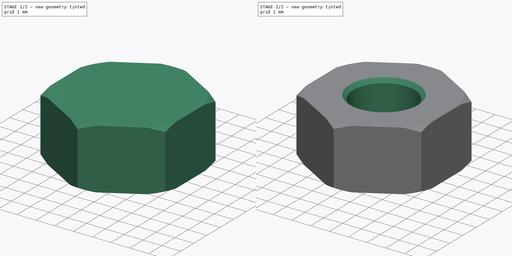
[diagram: build sequence overview — one tinted view per stage of 2, left to right]
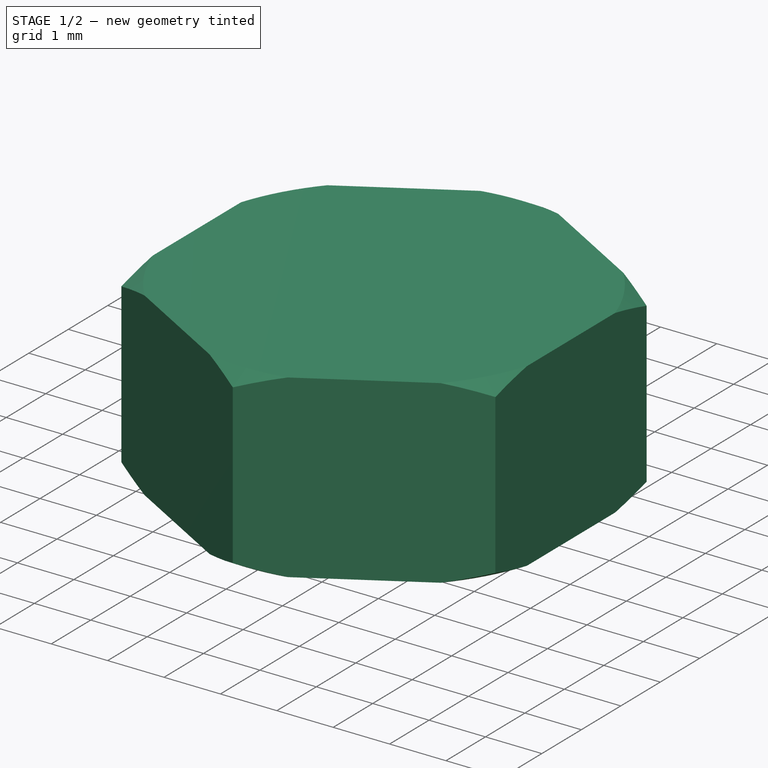
[diagram: stage 1 of 2 — iso view after this stage's code; geometry added in this stage tinted green]
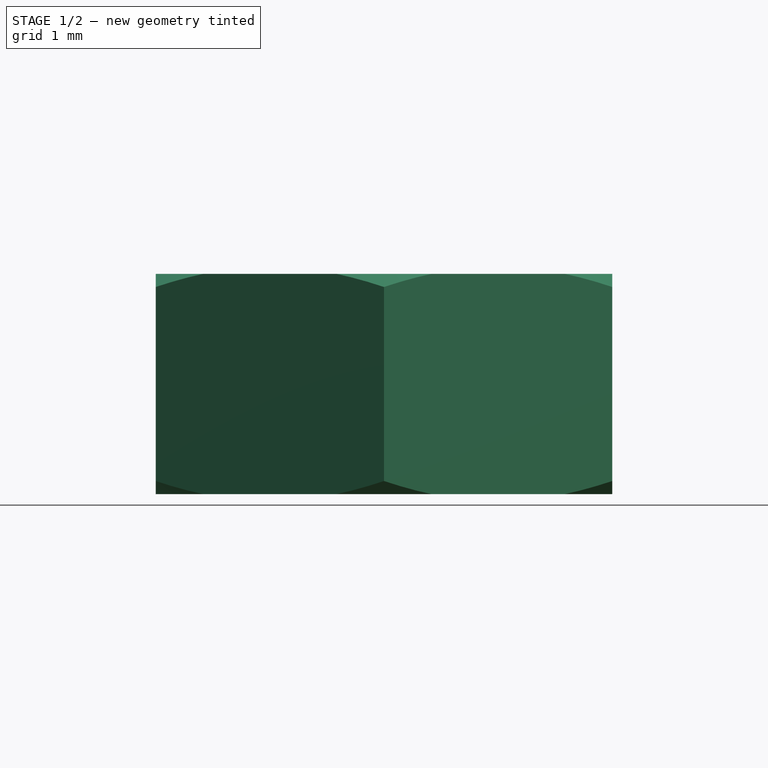
[diagram: stage 1 of 2 — front view after this stage's code; geometry added in this stage tinted green]
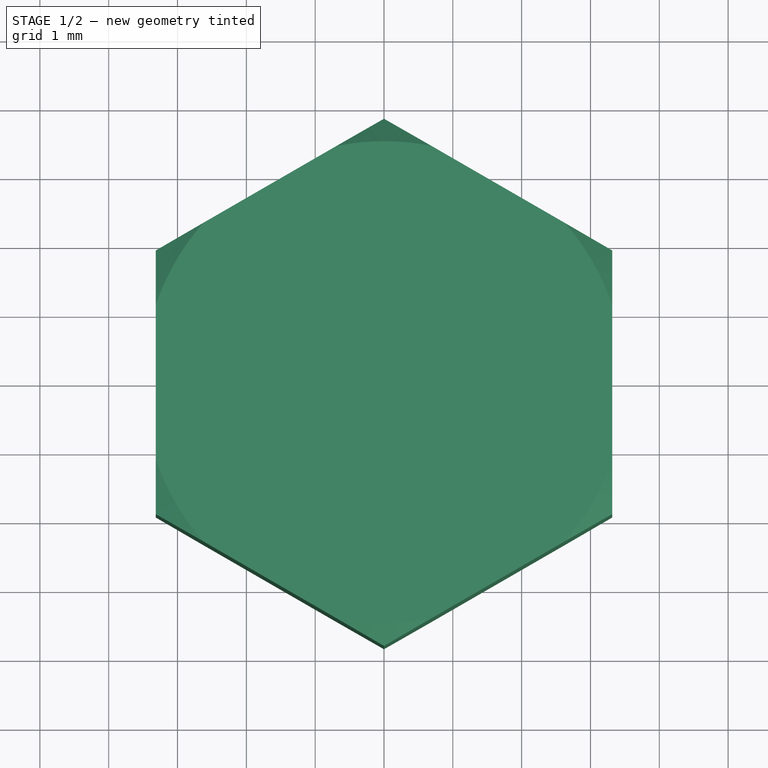
[diagram: stage 1 of 2 — top view after this stage's code; geometry added in this stage tinted green]
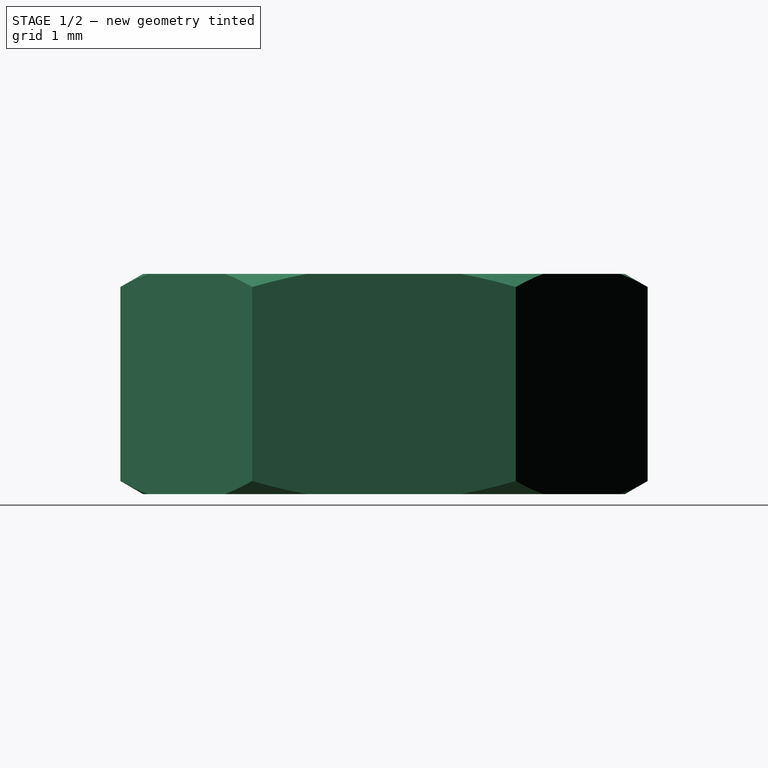
[diagram: stage 1 of 2 — right view after this stage's code; geometry added in this stage tinted green]
FCSTD DOCUMENT  (FreeCAD 0.18R4 (GitTag))
Label: ISO4032_Hex_Nut_M4
License: All rights reserved
LicenseURL: http://en.wikipedia.org/wiki/All_rights_reserved
objects: Sketcher::SketchObject×3, PartDesign::Pocket×2, PartDesign::Revolution×1, PartDesign::Chamfer×1, PartDesign::Body×1
note: 11 computed .brp shape members not serialized (recipe doc carries the construction recipe); baked Part::Feature solids carry a one-line shape summary decoded from their .brp

FEATURE [Sketcher::SketchObject] Sketch  label="Sketch_Body"
  MapMode = 5
  Placement = pos=(0,0,0) rot=(1,0,0;1.5708rad)
  Support = -> [XZ_Plane]
  sketch-geometry (6):
    g0: LineSegment StartX=0 StartY=0 StartZ=0 EndX=0 EndY=3.2 EndZ=0
    g1: LineSegment StartX=0 StartY=3.2 StartZ=0 EndX=3.5 EndY=3.2 EndZ=0
    g2: LineSegment StartX=3.5 StartY=3.2 StartZ=0 EndX=4 EndY=2.91132 EndZ=0
    g3: LineSegment StartX=4 StartY=2.91132 StartZ=0 EndX=4 EndY=0.288675 EndZ=0
    g4: LineSegment StartX=4 StartY=0.288675 StartZ=0 EndX=3.5 EndY=0 EndZ=0
    g5: LineSegment StartX=3.5 StartY=0 StartZ=0 EndX=0 EndY=0 EndZ=0
  constraints (17):
    c: Coincident(g-1,g0)
    c: PointOnObject(g0,g-2)
    c: Coincident(g0,g1)
    c: Horizontal(g1)
    c: Coincident(g1,g2)
    c: Coincident(g2,g3)
    c: Vertical(g3)
    c: Coincident(g3,g4)
    c: PointOnObject(g4,g-1)
    c: Coincident(g4,g5)
    c: Coincident(g5,g0)
    c: Angle(g1,g2) = 2.61799
    c: Angle(g4,g5) = 2.61799
    c: DistanceX(g0,g4) = 3.5
    c: Equal(g5,g1)
    c: DistanceY(g0,g0) = 3.2
    c: DistanceX(g0,g3) = 4
FEATURE [PartDesign::Revolution] Revolution
  Angle = 360
  Axis = (-3e-16,3e-16,1)
  Base = (0,0,0)
  Placement = pos=(0,0,0) rot=(1,0,0;1.5708rad)
  Profile = -> Sketch
  ReferenceAxis = -> Z_Axis
FEATURE [Sketcher::SketchObject] Sketch001  label="Sketch_Hexagon"
  MapMode = 5
  Support = -> [XY_Plane]
  expr: Constraints[21] = Sketch_Body.Constraints[16] + 1mm
  sketch-geometry (8):
    g0: Circle [constr] CenterX=0 CenterY=0 CenterZ=0 NormalX=0 NormalY=0 NormalZ=1 AngleXU=0 Radius=3.83
    g1: LineSegment StartX=0 StartY=3.83 StartZ=0 EndX=3.31688 EndY=1.915 EndZ=0
    g2: LineSegment StartX=3.31688 StartY=1.915 StartZ=0 EndX=3.31688 EndY=-1.915 EndZ=0
    g3: LineSegment StartX=3.31688 StartY=-1.915 StartZ=0 EndX=0 EndY=-3.83 EndZ=0
    g4: LineSegment StartX=0 StartY=-3.83 StartZ=0 EndX=-3.31688 EndY=-1.915 EndZ=0
    g5: LineSegment StartX=-3.31688 StartY=-1.915 StartZ=0 EndX=-3.31688 EndY=1.915 EndZ=0
    g6: LineSegment StartX=-3.31688 StartY=1.915 StartZ=0 EndX=0 EndY=3.83 EndZ=0
    g7: Circle CenterX=0 CenterY=0 CenterZ=0 NormalX=0 NormalY=0 NormalZ=1 AngleXU=0 Radius=5
  constraints (22):
    c: Coincident(g0,g-1)
    c: Diameter(g0) = 7.66
    c: PointOnObject(g1,g-2)
    c: PointOnObject(g1,g0)
    c: Coincident(g1,g2)
    c: PointOnObject(g2,g0)
    c: Vertical(g2)
    c: Coincident(g2,g3)
    c: PointOnObject(g3,g-2)
    c: Coincident(g3,g4)
    c: PointOnObject(g4,g0)
    c: Coincident(g4,g5)
    c: PointOnObject(g5,g0)
    c: Coincident(g5,g6)
    c: Coincident(g6,g1)
    c: Equal(g1,g2)
    c: Equal(g6,g5)
    c: Equal(g4,g5)
    c: Equal(g3,g2)
    c: PointOnObject(g1,g0)
    c: Coincident(g7,g-1)
    c: Radius(g7) = 5
FEATURE [PartDesign::Pocket] Pocket
  BaseFeature = -> Revolution
  Length = 5
  Length2 = 100
  Midplane = true
  Placement = pos=(0,0,0) rot=(1,0,0;1.5708rad)
  Profile = -> Sketch001
  Type = 1
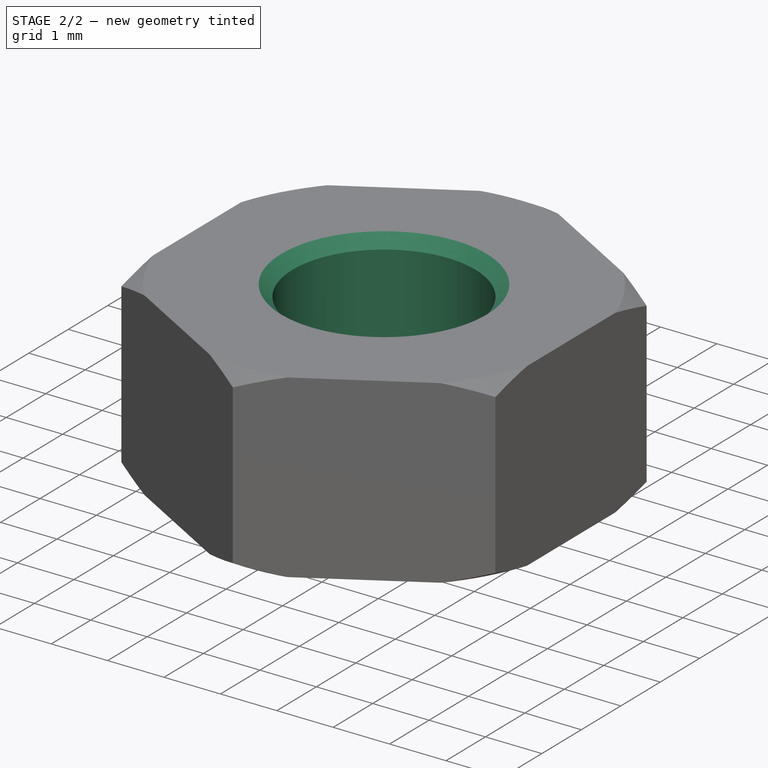
[diagram: stage 2 of 2 — iso view after this stage's code; geometry added in this stage tinted green]
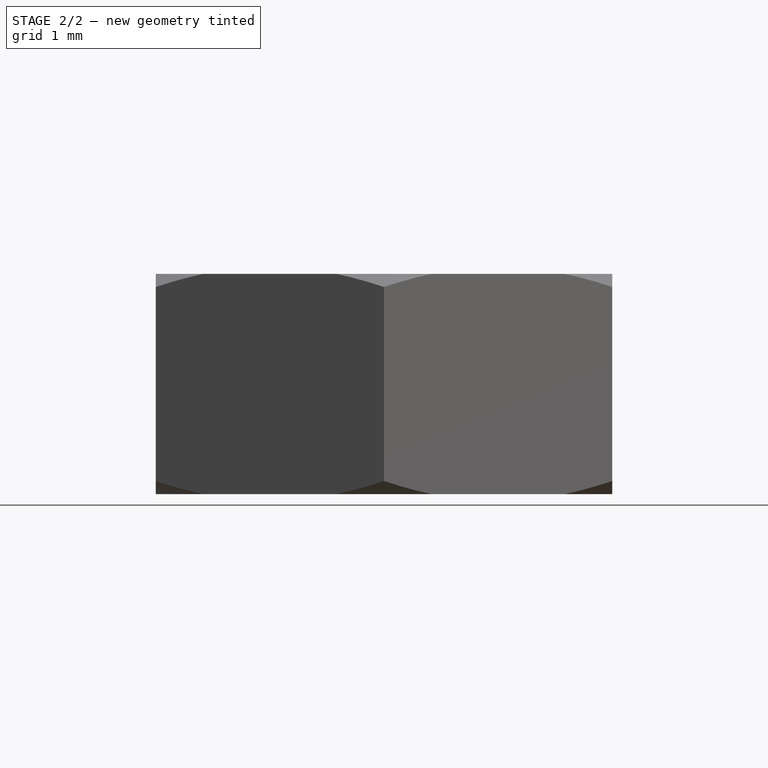
[diagram: stage 2 of 2 — front view after this stage's code; geometry added in this stage tinted green]
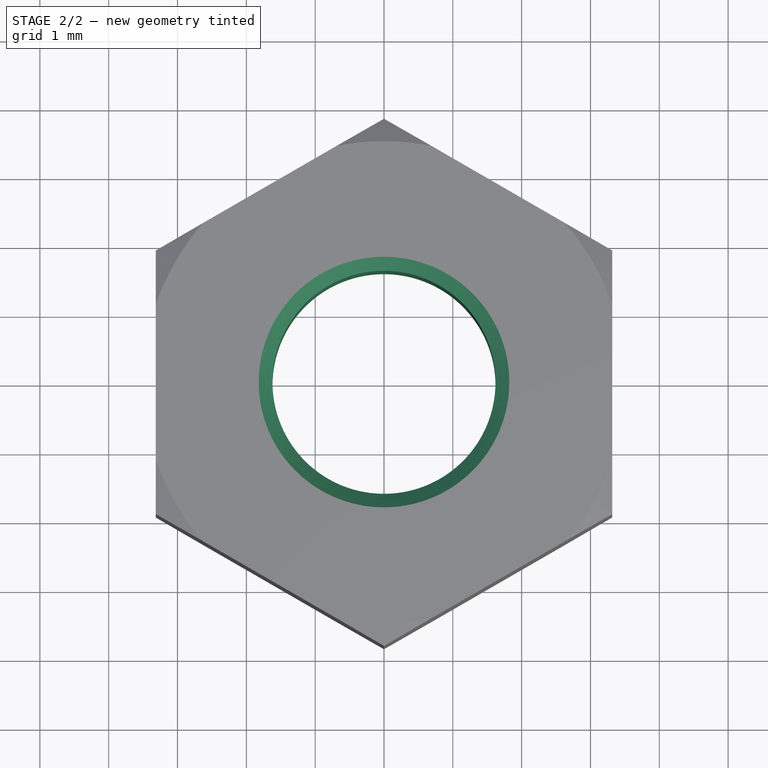
[diagram: stage 2 of 2 — top view after this stage's code; geometry added in this stage tinted green]
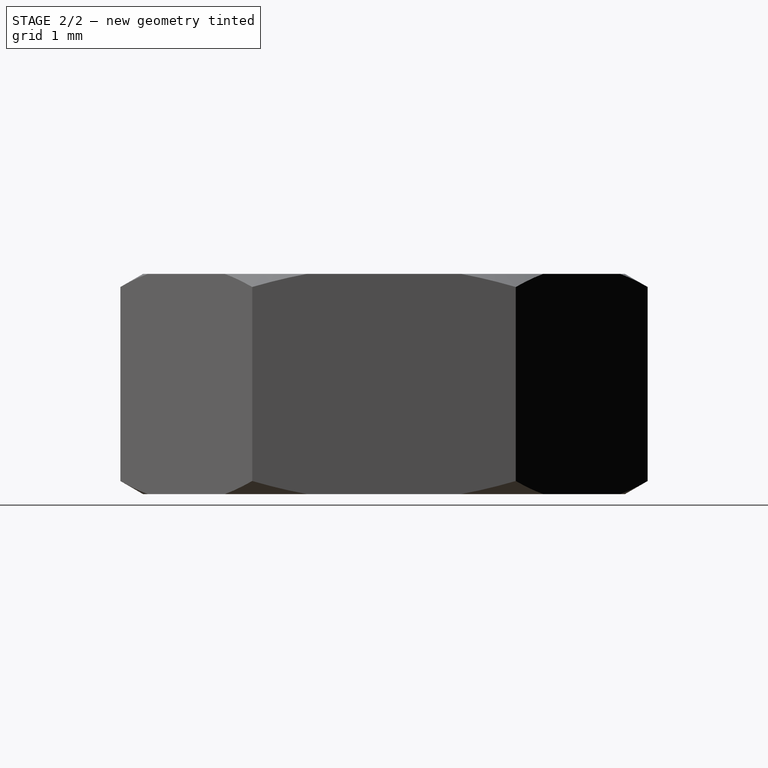
[diagram: stage 2 of 2 — right view after this stage's code; geometry added in this stage tinted green]
FEATURE [Sketcher::SketchObject] Sketch002  label="Sketch_ThreadHole"
  MapMode = 5
  Support = -> [XY_Plane]
  sketch-geometry (1):
    g0: Circle CenterX=0 CenterY=0 CenterZ=0 NormalX=0 NormalY=0 NormalZ=1 AngleXU=0 Radius=1.62
  constraints (2):
    c: Coincident(g0,g-1)
    c: Diameter(g0) = 3.24
FEATURE [PartDesign::Pocket] Pocket001  label="Pocket_ThreadHole"
  BaseFeature = -> Pocket
  Length = 5
  Length2 = 100
  Midplane = true
  Placement = pos=(0,0,0) rot=(1,0,0;1.5708rad)
  Profile = -> Sketch002
  Type = 1
FEATURE [PartDesign::Chamfer] Chamfer  label="Chamfer_ThreadHole"
  Base = -> Pocket001 [Edge51,Edge13]
  BaseFeature = -> Pocket001
  Placement = pos=(0,0,0) rot=(1,0,0;1.5708rad)
  Size = 0.2
FEATURE [PartDesign::Body] Body  label="Body_ISO4032_Hex_Nut_M4"
  Group = -> [Sketch,Revolution,Sketch001,Pocket,Sketch002,Pocket001,Chamfer]
  Origin = -> Origin
  Tip = -> Chamfer
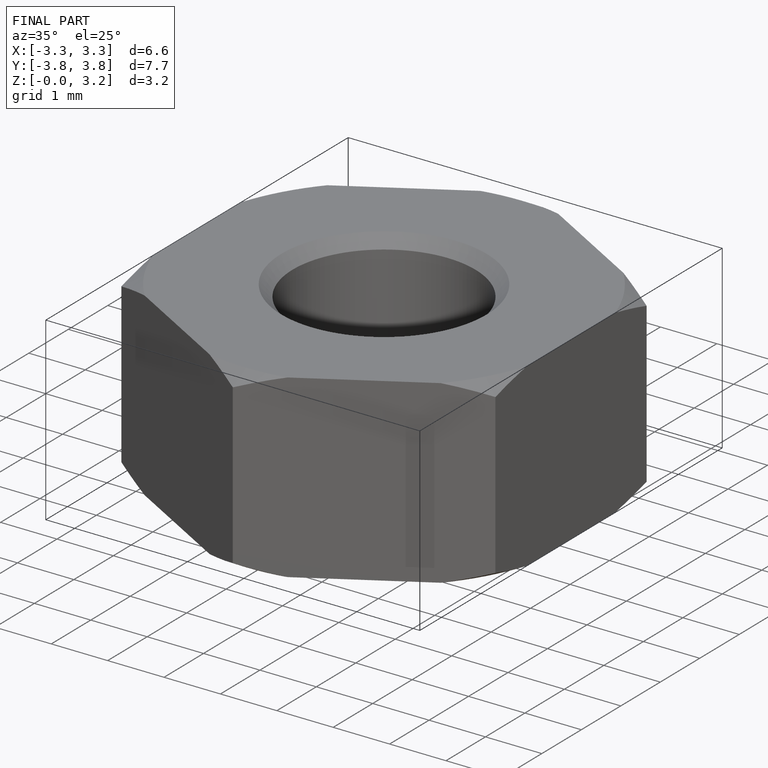
[diagram: finished part — iso view with bounding-box wireframe]
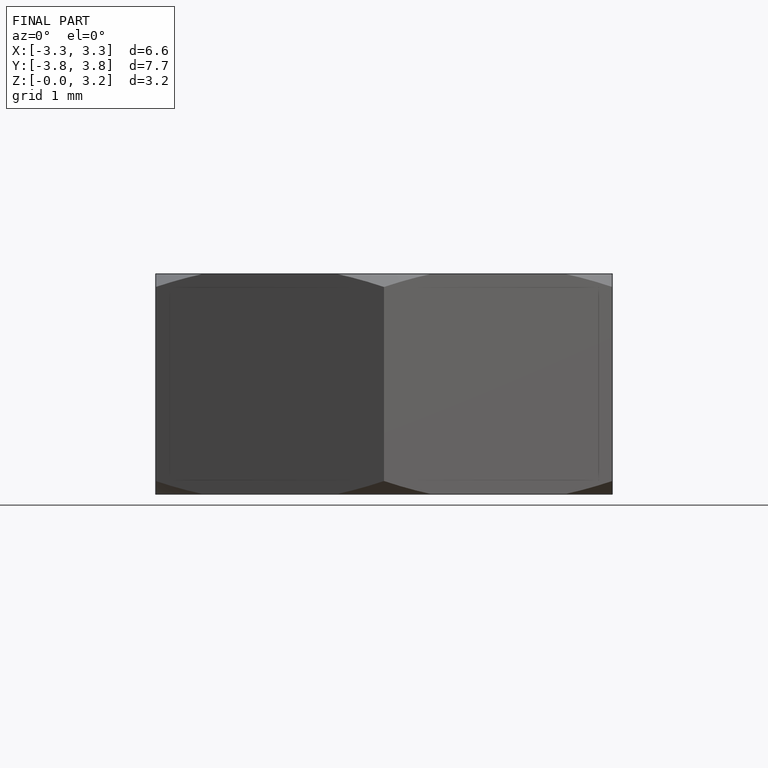
[diagram: finished part — front view with bounding-box wireframe]
